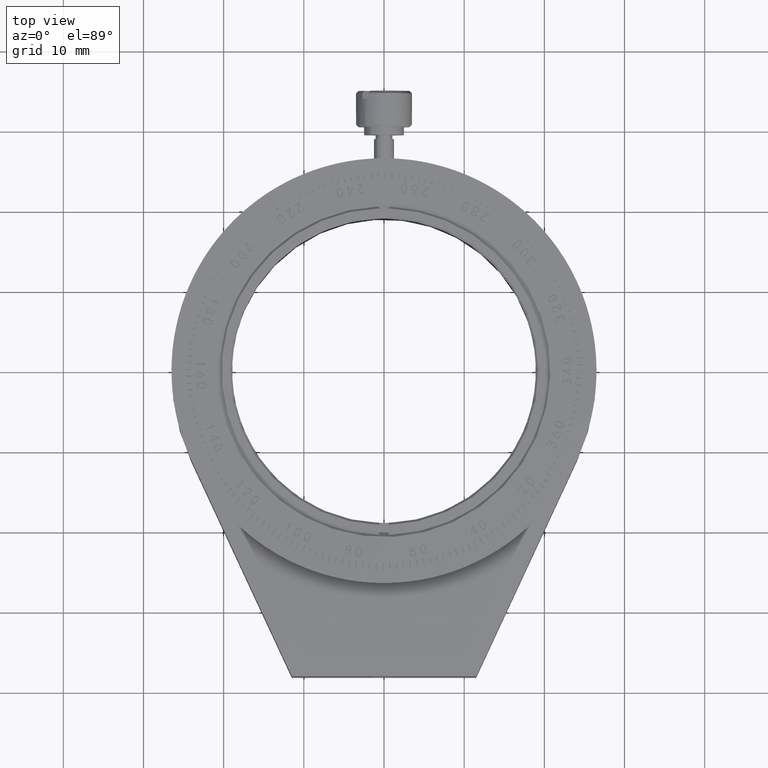
[diagram: clean part render]
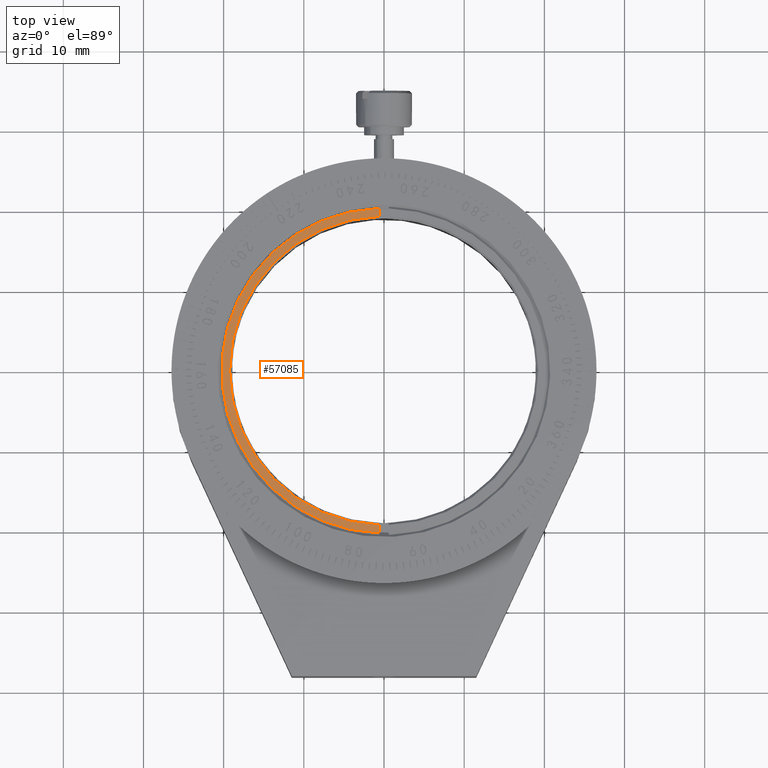
[diagram: same view with one face highlighted and labeled with its STEP entity id]
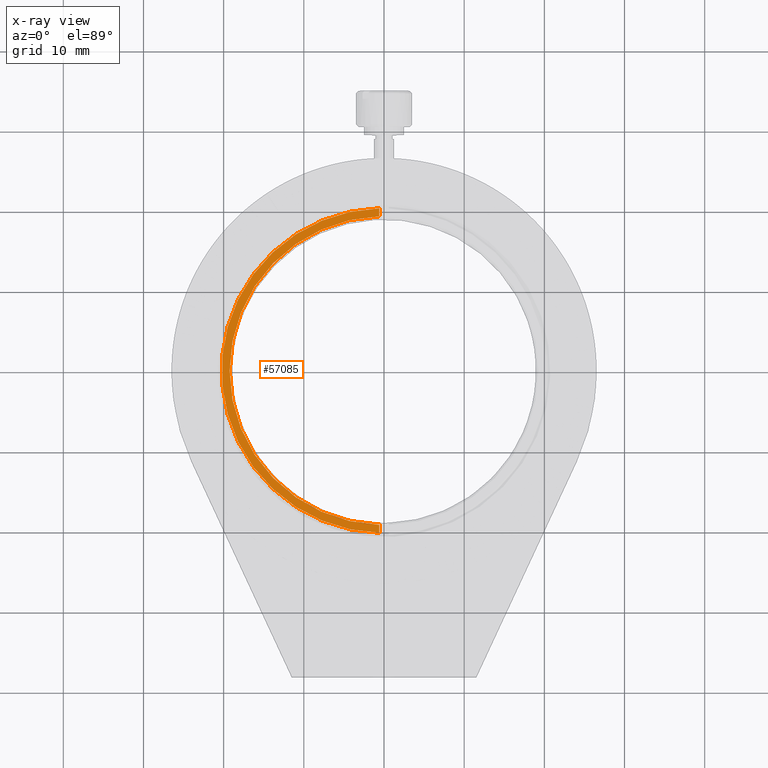
[diagram: x-ray of the same camera — body ghosted, the highlighted face saturated]
A machine part, top view. The second image highlights one B-rep face of the part: STEP entity #57085.
The next image is the same camera in x-ray: the body ghosted, the highlighted face saturated — about 0% of this face is hidden behind the body in this view.
In plain terms, the highlighted planar face has unit normal (0, 0, 1).
Its self-contained STEP definition (entity closure, byte-faithful):
#114 = AXIS2_PLACEMENT_3D ( 'NONE', #56309, #12537, #17641 ) ;
#7204 = VERTEX_POINT ( 'NONE', #50194 ) ;
#7690 = EDGE_CURVE ( 'NONE', #25002, #20764, #25581, .T. ) ;
#12537 = DIRECTION ( 'NONE',  ( 0.000000000000000000, 0.000000000000000000, 1.000000000000000000 ) ) ;
#13882 = AXIS2_PLACEMENT_3D ( 'NONE', #53898, #29600, #57424 ) ;
#15711 = DIRECTION ( 'NONE',  ( -1.000000000000000000, -0.000000000000000000, -0.000000000000000000 ) ) ;
#16995 = CARTESIAN_POINT ( 'NONE',  ( -50000.00000000001455, 0.6000000000000000888, 0.000000000000000000 ) ) ;
#17641 = DIRECTION ( 'NONE',  ( 1.000000000000000000, 0.000000000000000000, -0.000000000000000000 ) ) ;
#19438 = DIRECTION ( 'NONE',  ( 0.000000000000000000, 0.000000000000000000, 1.000000000000000000 ) ) ;
#20764 = VERTEX_POINT ( 'NONE', #50732 ) ;
#20975 = CARTESIAN_POINT ( 'NONE',  ( -19.24064707851585254, 0.6000000000000000888, 0.000000000000000000 ) ) ;
#21939 = VERTEX_POINT ( 'NONE', #34008 ) ;
#23330 = CIRCLE ( 'NONE', #44765, 20.25000000000001066 ) ;
#23584 = DIRECTION ( 'NONE',  ( 1.000000000000000000, 0.000000000000000000, 0.000000000000000000 ) ) ;
#25002 = VERTEX_POINT ( 'NONE', #20975 ) ;
#25581 = LINE ( 'NONE', #39371, #28195 ) ;
#26758 = EDGE_LOOP ( 'NONE', ( #47226, #53020, #38220, #41465 ) ) ;
#27665 = EDGE_CURVE ( 'NONE', #21939, #7204, #50221, .T. ) ;
#28195 = VECTOR ( 'NONE', #15711, 1000.000000000000000 ) ;
#29600 = DIRECTION ( 'NONE',  ( -0.000000000000000000, -0.000000000000000000, -1.000000000000000000 ) ) ;
#30609 = VECTOR ( 'NONE', #55982, 1000.000000000000000 ) ;
#34008 = CARTESIAN_POINT ( 'NONE',  ( 20.24110915933216504, 0.6000000000000000888, 0.000000000000000000 ) ) ;
#34222 = EDGE_CURVE ( 'NONE', #25002, #7204, #53710, .T. ) ;
#38220 = ORIENTED_EDGE ( 'NONE', *, *, #7690, .F. ) ;
#39371 = CARTESIAN_POINT ( 'NONE',  ( -50000.00000000001455, 0.6000000000000000888, 0.000000000000000000 ) ) ;
#41465 = ORIENTED_EDGE ( 'NONE', *, *, #34222, .T. ) ;
#41603 = PLANE ( 'NONE',  #114 ) ;
#44765 = AXIS2_PLACEMENT_3D ( 'NONE', #53301, #19438, #23584 ) ;
#47226 = ORIENTED_EDGE ( 'NONE', *, *, #27665, .F. ) ;
#50194 = CARTESIAN_POINT ( 'NONE',  ( 19.24064707851585254, 0.6000000000000000888, 0.000000000000000000 ) ) ;
#50221 = LINE ( 'NONE', #16995, #30609 ) ;
#50555 = FACE_OUTER_BOUND ( 'NONE', #26758, .T. ) ;
#50732 = CARTESIAN_POINT ( 'NONE',  ( -20.24110915933216504, 0.6000000000000000888, 0.000000000000000000 ) ) ;
#53020 = ORIENTED_EDGE ( 'NONE', *, *, #55984, .T. ) ;
#53301 = CARTESIAN_POINT ( 'NONE',  ( 0.000000000000000000, 0.000000000000000000, 0.000000000000000000 ) ) ;
#53710 = CIRCLE ( 'NONE', #13882, 19.25000000000001776 ) ;
#53898 = CARTESIAN_POINT ( 'NONE',  ( 0.000000000000000000, 0.000000000000000000, 0.000000000000000000 ) ) ;
#55982 = DIRECTION ( 'NONE',  ( -1.000000000000000000, -0.000000000000000000, -0.000000000000000000 ) ) ;
#55984 = EDGE_CURVE ( 'NONE', #21939, #20764, #23330, .T. ) ;
#56309 = CARTESIAN_POINT ( 'NONE',  ( 0.000000000000000000, 0.000000000000000000, 0.000000000000000000 ) ) ;
#57085 = ADVANCED_FACE ( 'NONE', ( #50555 ), #41603, .T. ) ;
#57424 = DIRECTION ( 'NONE',  ( 1.000000000000000000, 0.000000000000000000, 0.000000000000000000 ) ) ;